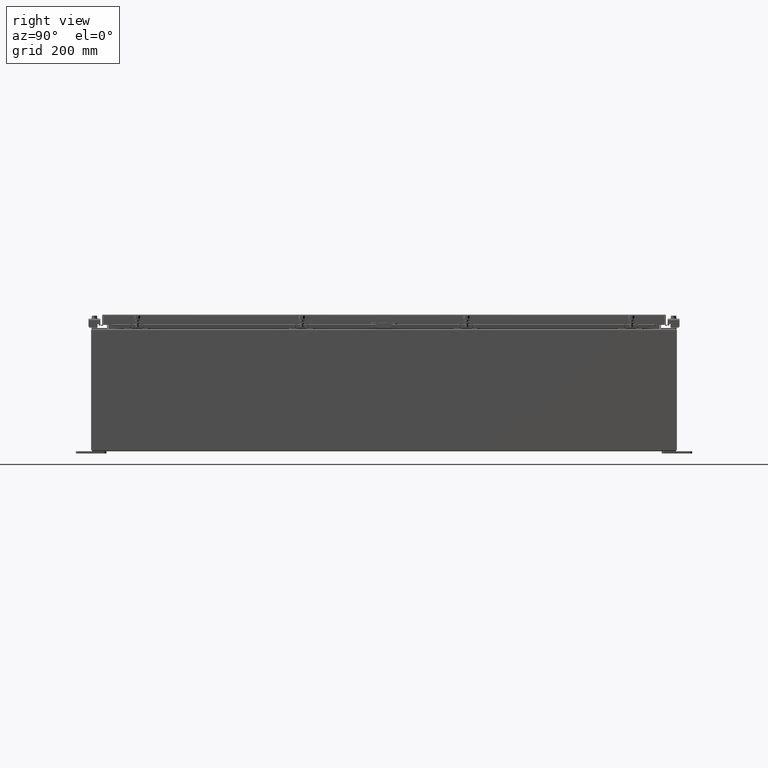
[diagram: clean part render]
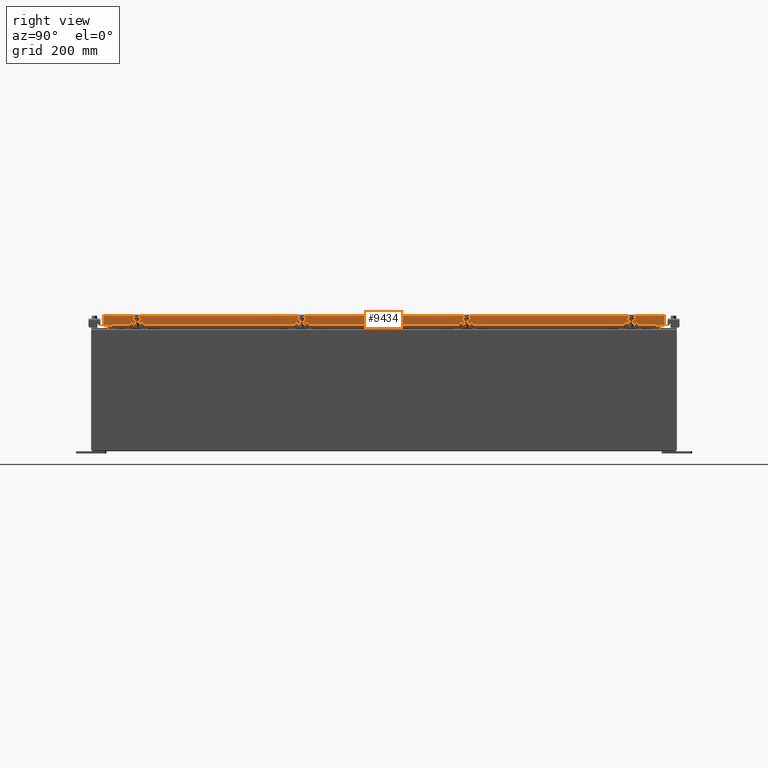
[diagram: same view with one face highlighted and labeled with its STEP entity id]
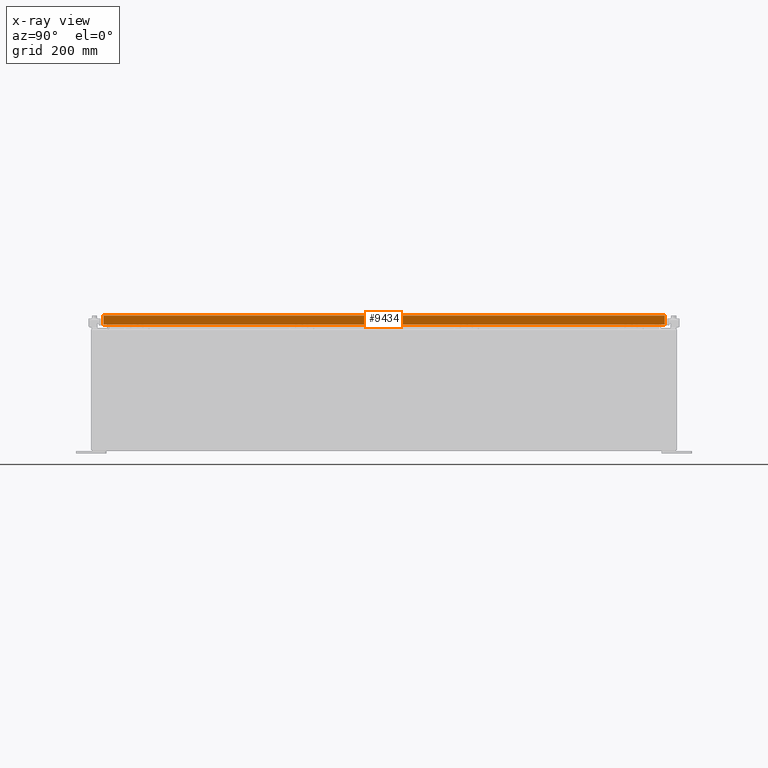
[diagram: x-ray of the same camera — body ghosted, the highlighted face saturated]
A machine part, right view. The second image highlights one B-rep face of the part: STEP entity #9434.
The next image is the same camera in x-ray: the body ghosted, the highlighted face saturated — about 0% of this face is hidden behind the body in this view.
In plain terms, the highlighted planar face has unit normal (1, 0, 0).
Its self-contained STEP definition (entity closure, byte-faithful):
#195 = PLANE ( 'NONE',  #30069 ) ;
#709 = CARTESIAN_POINT ( 'NONE',  ( 14.07799999999999900, -23.09400000000000100, -0.8499999999999999800 ) ) ;
#883 = LINE ( 'NONE', #50096, #19963 ) ;
#1894 = DIRECTION ( 'NONE',  ( -2.818880942772360100E-015, -6.982962677686267500E-015, 1.000000000000000000 ) ) ;
#3374 = EDGE_LOOP ( 'NONE', ( #35093, #10938, #6444, #23577, #30569, #24142 ) ) ;
#4786 = DIRECTION ( 'NONE',  ( 0.0000000000000000000, -1.000000000000000000, 0.0000000000000000000 ) ) ;
#5165 = VECTOR ( 'NONE', #1894, 39.37007874015748100 ) ;
#6444 = ORIENTED_EDGE ( 'NONE', *, *, #25797, .F. ) ;
#6478 = LINE ( 'NONE', #30385, #5165 ) ;
#6648 = FACE_OUTER_BOUND ( 'NONE', #3374, .T. ) ;
#7960 = CARTESIAN_POINT ( 'NONE',  ( 14.07799999999999800, 23.00515786437627200, -0.08770000000000026400 ) ) ;
#8426 = DIRECTION ( 'NONE',  ( 1.000000000000000000, 0.0000000000000000000, 2.818880942772360100E-015 ) ) ;
#9434 = ADVANCED_FACE ( 'NONE', ( #6648 ), #195, .T. ) ;
#10817 = LINE ( 'NONE', #709, #27340 ) ;
#10938 = ORIENTED_EDGE ( 'NONE', *, *, #44908, .F. ) ;
#11030 = VERTEX_POINT ( 'NONE', #18556 ) ;
#11125 = EDGE_CURVE ( 'NONE', #17110, #51556, #49232, .T. ) ;
#12689 = DIRECTION ( 'NONE',  ( -2.818880942772360100E-015, -6.982962677686267500E-015, 1.000000000000000000 ) ) ;
#14995 = DIRECTION ( 'NONE',  ( 0.0000000000000000000, -1.000000000000000000, 0.0000000000000000000 ) ) ;
#17110 = VERTEX_POINT ( 'NONE', #24523 ) ;
#17474 = CARTESIAN_POINT ( 'NONE',  ( 14.07799999999999400, 22.25515786437627200, -0.8499999999999999800 ) ) ;
#18556 = CARTESIAN_POINT ( 'NONE',  ( 14.07799999999999900, 23.00515786437628000, -0.8499999999999999800 ) ) ;
#18770 = VERTEX_POINT ( 'NONE', #36443 ) ;
#19963 = VECTOR ( 'NONE', #22019, 39.37007874015748100 ) ;
#22019 = DIRECTION ( 'NONE',  ( 0.0000000000000000000, -1.000000000000000000, 0.0000000000000000000 ) ) ;
#23510 = VECTOR ( 'NONE', #27697, 39.37007874015748100 ) ;
#23577 = ORIENTED_EDGE ( 'NONE', *, *, #41366, .F. ) ;
#24142 = ORIENTED_EDGE ( 'NONE', *, *, #51914, .T. ) ;
#24523 = CARTESIAN_POINT ( 'NONE',  ( 14.07799999999999900, -23.00515786437626200, -0.8499999999999999800 ) ) ;
#25797 = EDGE_CURVE ( 'NONE', #36800, #18770, #45152, .T. ) ;
#25896 = VERTEX_POINT ( 'NONE', #7960 ) ;
#27340 = VECTOR ( 'NONE', #4786, 39.37007874015748100 ) ;
#27697 = DIRECTION ( 'NONE',  ( 0.0000000000000000000, -1.000000000000000000, 0.0000000000000000000 ) ) ;
#28884 = CARTESIAN_POINT ( 'NONE',  ( 14.07799999999999800, -23.00515786437626900, -0.07470000000000015500 ) ) ;
#30069 = AXIS2_PLACEMENT_3D ( 'NONE', #44859, #8426, #36827 ) ;
#30385 = CARTESIAN_POINT ( 'NONE',  ( 14.07799999999999800, 23.00515786437627600, 2.010640123336897700E-013 ) ) ;
#30569 = ORIENTED_EDGE ( 'NONE', *, *, #33789, .T. ) ;
#33789 = EDGE_CURVE ( 'NONE', #11030, #25896, #6478, .T. ) ;
#35093 = ORIENTED_EDGE ( 'NONE', *, *, #11125, .F. ) ;
#36443 = CARTESIAN_POINT ( 'NONE',  ( 14.07799999999999400, -22.25515786437626200, -0.8499999999999999800 ) ) ;
#36800 = VERTEX_POINT ( 'NONE', #17474 ) ;
#36827 = DIRECTION ( 'NONE',  ( 2.818880942772360100E-015, 0.0000000000000000000, -1.000000000000000000 ) ) ;
#37876 = VECTOR ( 'NONE', #14995, 39.37007874015748100 ) ;
#38420 = VECTOR ( 'NONE', #12689, 39.37007874015748100 ) ;
#39145 = LINE ( 'NONE', #39341, #37876 ) ;
#39341 = CARTESIAN_POINT ( 'NONE',  ( 14.07799999999999900, -23.09400000000000100, -0.8499999999999999800 ) ) ;
#39915 = CARTESIAN_POINT ( 'NONE',  ( 14.07799999999999400, 22.25515786437628000, -0.8499999999999999800 ) ) ;
#41366 = EDGE_CURVE ( 'NONE', #11030, #36800, #39145, .T. ) ;
#44859 = CARTESIAN_POINT ( 'NONE',  ( 14.07799999999999800, 0.0000000000000000000, 3.933861110876539400E-014 ) ) ;
#44908 = EDGE_CURVE ( 'NONE', #18770, #17110, #10817, .T. ) ;
#45152 = LINE ( 'NONE', #39915, #23510 ) ;
#48380 = CARTESIAN_POINT ( 'NONE',  ( 14.07799999999999800, -23.00515786437626900, -0.08770000000000026400 ) ) ;
#49232 = LINE ( 'NONE', #28884, #38420 ) ;
#50096 = CARTESIAN_POINT ( 'NONE',  ( 14.07799999999999800, 0.0000000000000000000, -0.08770000000000026400 ) ) ;
#51556 = VERTEX_POINT ( 'NONE', #48380 ) ;
#51914 = EDGE_CURVE ( 'NONE', #25896, #51556, #883, .T. ) ;